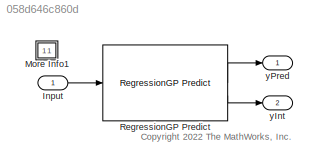
MODEL slx_058d646c860d
KIND model
CONFIG AbsTol = auto
CONFIG EnableMultiTasking = off
CONFIG FixedStep = auto
CONFIG MaxStep = auto
CONFIG MinStep = auto
CONFIG PreLoadFcn = if ~exist("gpMdl","var")\n\nload gprdata\ngpMdl = fitrgp(Xtrain,ytrain,Standardize=1);\nmodelInput.time = (0:length(ytest)-1)';\nmodelInput.signals(1).values = Xtest;\nmodelInput.signals(1).dimensions = size(Xtest,2);\n\nend
CONFIG RelTol = 1e-3
CONFIG SampleTimeConstraint = Unconstrained
CONFIG SolverName = FixedStepDiscrete
CONFIG StartTime = 0.0
CONFIG StopTime = modelInput.time(end)
BLOCK [Inport] Input
  PortDimensions = 6
  SampleTime = 1
BLOCK [SubSystem] More Info1
  OpenFcn = showExample('stats/PredictResponsesUsingRegressionGPPredictBlockExample')
BLOCK [Reference] RegressionGP Predict  REF=statsLibrary/Regression/RegressionGP Predict
  SourceBlock = statsLibrary/Regression/RegressionGP Predict
  SourceType = RegressionGP Predict
BLOCK [Outport] yInt
  Port = 2
  SignalName = yint
BLOCK [Outport] yPred
  SignalName = ypred
ANNOTATION (root): <copyright redacted>
LINE Input:1 -> RegressionGP Predict:1
LINE RegressionGP Predict:1 -> yPred:1
LINE RegressionGP Predict:2 -> yInt:1
